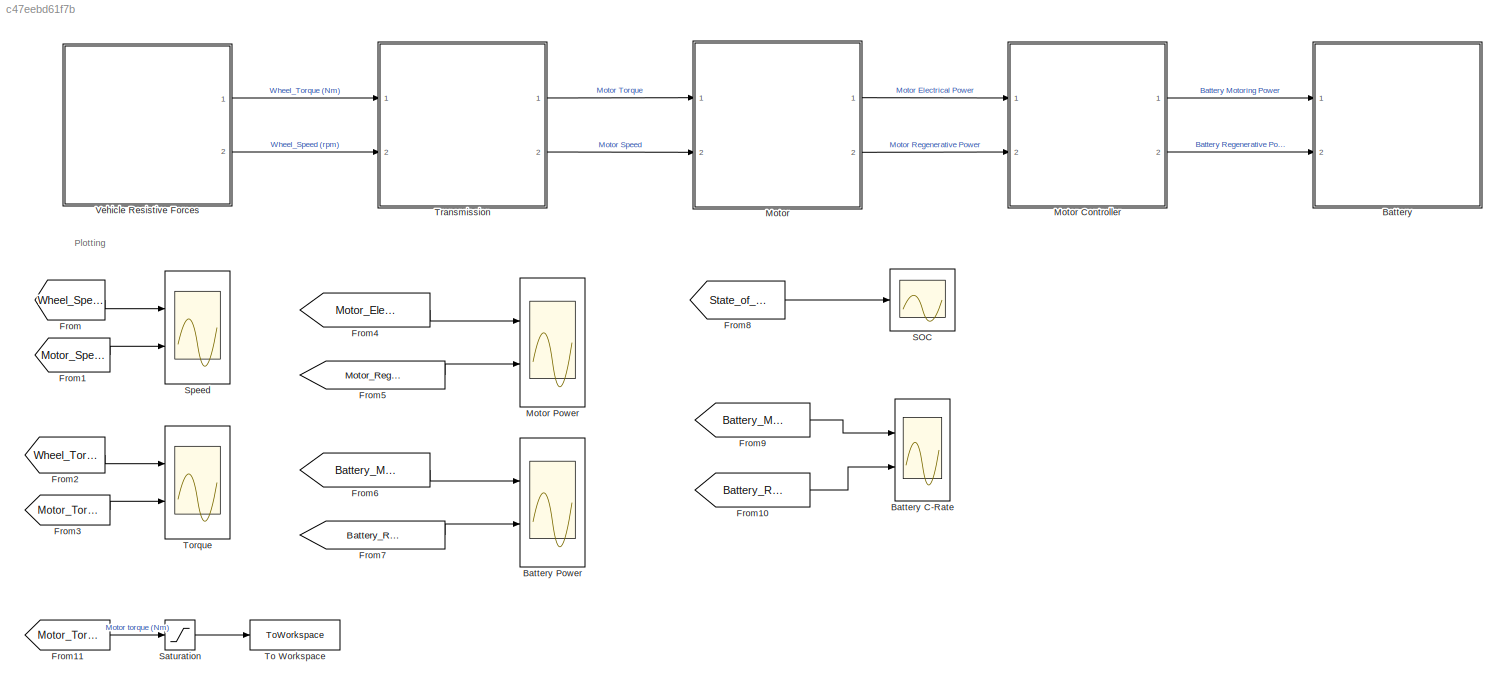
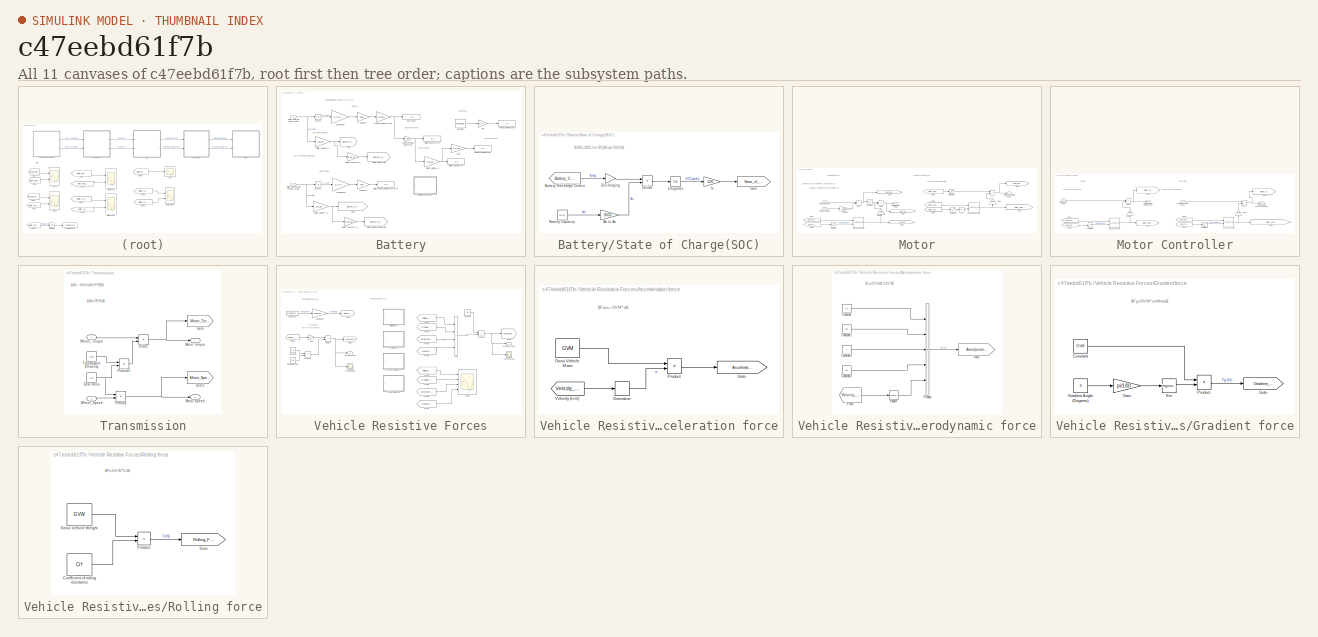
[diagram: thumbnail index - all 11 canvases of the model, root first then tree order]
MODEL slx_c47eebd61f7b
KIND model
CONFIG AbsTol = auto
CONFIG EnableMultiTasking = off
CONFIG FixedStep = 0.5
CONFIG MaxStep = auto
CONFIG MinStep = auto
CONFIG RelTol = 1e-3
CONFIG SampleTimeConstraint = Unconstrained
CONFIG SolverName = FixedStepAuto
CONFIG StartTime = 0.0
CONFIG StopTime = 993
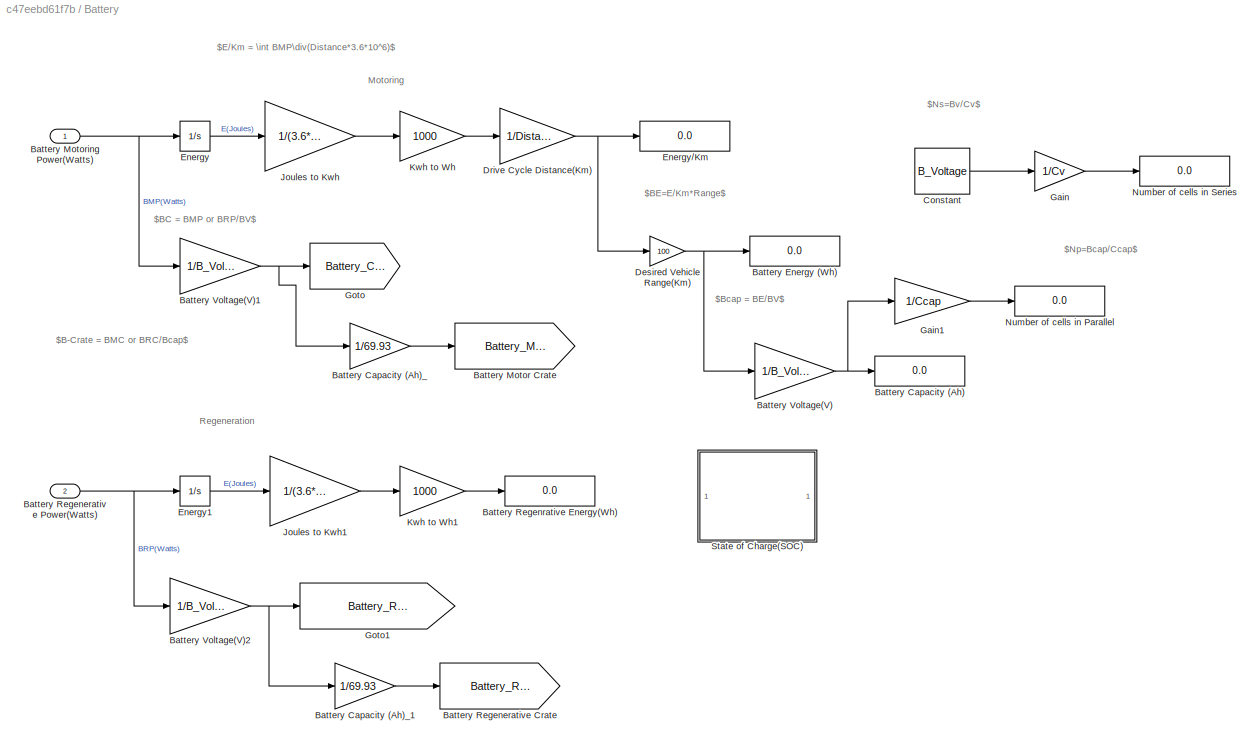
BLOCK [SubSystem] Battery
  Ports = [2]
  RequestExecContextInheritance = off
BLOCK [Scope] Battery C-Rate
  Floating = off
  NumInputPorts = 2
  Ports = [2]
  ScopeSpecificationString = Simulink.scopes.TimeScopeBlockCfg('CurrentConfiguration', extmgr.ConfigurationSet(extmgr.Configuration('Core','General UI',true),extmgr.Configuration('Core','Source UI',true),extmgr.Configuration('Sources','WiredSimulink',true,'DataLoggingVariableName','ScopeData1'),extmgr.Configuration('Visuals','Time Domain',true,'SerializedDisplays',{struct('MinYLimReal','-1.74396','MaxYLimReal','2.04292','YLab...<+1436ch>
BLOCK [Scope] Battery Power
  Floating = off
  NumInputPorts = 2
  Ports = [2]
  ScopeSpecificationString = Simulink.scopes.TimeScopeBlockCfg('CurrentConfiguration', extmgr.ConfigurationSet(extmgr.Configuration('Core','General UI',true),extmgr.Configuration('Core','Source UI',true),extmgr.Configuration('Sources','WiredSimulink',true,'DataLoggingVariableName','ScopeData1'),extmgr.Configuration('Visuals','Time Domain',true,'SerializedDisplays',{struct('MinYLimReal','-55127.67657','MaxYLimReal','51882.7715...<+1428ch>
BLOCK [Display] Battery/Battery Capacity (Ah)
  Decimation = 1
  Format = long
  Ports = [1]
BLOCK [Gain] Battery/Battery Capacity (Ah)_
  Gain = 1/69.93
BLOCK [Gain] Battery/Battery Capacity (Ah)_1
  Gain = 1/69.93
BLOCK [Display] Battery/Battery Energy (Wh)
  Decimation = 1
  Format = long
  Ports = [1]
BLOCK [Goto] Battery/Battery Motor Crate
  GotoTag = Battery_Motor_C_rate
  TagVisibility = global
BLOCK [Inport] Battery/Battery Motoring Power(Watts)
BLOCK [Goto] Battery/Battery Regenerative Crate
  GotoTag = Battery_Regen_C_rate
  TagVisibility = global
BLOCK [Inport] Battery/Battery Regenerative Power(Watts)
  Port = 2
BLOCK [Display] Battery/Battery Regenrative Energy(Wh)
  Decimation = 1
  Ports = [1]
BLOCK [Gain] Battery/Battery Voltage(V)
  Gain = 1/B_Voltage
BLOCK [Gain] Battery/Battery Voltage(V)1
  Gain = 1/B_Voltage
BLOCK [Gain] Battery/Battery Voltage(V)2
  Gain = 1/B_Voltage
BLOCK [Constant] Battery/Constant
  Value = B_Voltage
BLOCK [Gain] Battery/Desired Vehicle Range(Km)
  Gain = 100
BLOCK [Gain] Battery/Drive Cycle Distance(Km)
  Gain = 1/Distance
BLOCK [Integrator] Battery/Energy
  Ports = [1, 1]
BLOCK [Display] Battery/Energy//Km
  Decimation = 1
  Ports = [1]
BLOCK [Integrator] Battery/Energy1
  Ports = [1, 1]
BLOCK [Gain] Battery/Gain
  Gain = 1/Cv
BLOCK [Gain] Battery/Gain1
  Gain = 1/Ccap
BLOCK [Goto] Battery/Goto
  GotoTag = Battery_Current
  TagVisibility = global
BLOCK [Goto] Battery/Goto1
  GotoTag = Battery_Regenerative_Current
  TagVisibility = global
BLOCK [Gain] Battery/Joules to Kwh
  Gain = 1/(3.6*10^6)
BLOCK [Gain] Battery/Joules to Kwh1
  Gain = 1/(3.6*10^6)
BLOCK [Gain] Battery/Kwh to Wh
  Gain = 1000
BLOCK [Gain] Battery/Kwh to Wh1
  Gain = 1000
BLOCK [Display] Battery/Number of cells in Parallel
  Decimation = 1
  Ports = [1]
BLOCK [Display] Battery/Number of cells in Series
  Decimation = 1
  Ports = [1]
BLOCK [SubSystem] Battery/State of Charge(SOC)
  Ports = []
  RequestExecContextInheritance = off
BLOCK [Gain] Battery/State of Charge(SOC)/%
  Gain = 100
BLOCK [Gain] Battery/State of Charge(SOC)/Ah to As
  Gain = 3600
BLOCK [Constant] Battery/State of Charge(SOC)/Battery Capacity
  Value = 69.93
BLOCK [From] Battery/State of Charge(SOC)/Battery Discharge Current
  GotoTag = Battery_Current
  TagVisibility = global
BLOCK [Gain] Battery/State of Charge(SOC)/Discharging
  Gain = -1
BLOCK [Product] Battery/State of Charge(SOC)/Divide
  Inputs = */
  Ports = [2, 1]
BLOCK [Goto] Battery/State of Charge(SOC)/Goto
  GotoTag = State_of_Charge
  TagVisibility = global
BLOCK [Integrator] Battery/State of Charge(SOC)/Integrator
  InitialCondition = ISOC
  Ports = [1, 1]
BLOCK [From] From
  GotoTag = Wheel_Speed
  TagVisibility = global
BLOCK [From] From1
  GotoTag = Motor_Speed
  TagVisibility = global
BLOCK [From] From10
  GotoTag = Battery_Regen_C_rate
  TagVisibility = global
BLOCK [From] From11
  GotoTag = Motor_Torque
  TagVisibility = global
BLOCK [From] From2
  GotoTag = Wheel_Torque
  TagVisibility = global
BLOCK [From] From3
  GotoTag = Motor_Torque
  TagVisibility = global
BLOCK [From] From4
  GotoTag = Motor_Electrical_Power
  TagVisibility = global
BLOCK [From] From5
  GotoTag = Motor_Regenerative_Power
  TagVisibility = global
BLOCK [From] From6
  GotoTag = Battery_Motoring_power
  TagVisibility = global
BLOCK [From] From7
  GotoTag = Battery_Regenerative_power
  TagVisibility = global
BLOCK [From] From8
  GotoTag = State_of_Charge
  TagVisibility = global
BLOCK [From] From9
  GotoTag = Battery_Motor_C_rate
  TagVisibility = global
BLOCK [SubSystem] Motor
  Ports = [2, 2]
  RequestExecContextInheritance = off
BLOCK [SubSystem] Motor Controller
  Ports = [2, 2]
  RequestExecContextInheritance = off
BLOCK [Lookup_n-D] Motor Controller/2-D Lookup Table
  BreakpointsForDimension1 = Motor_controller_eff.Speed
  BreakpointsForDimension2 = Motor_controller_eff.Torque
  InputPortMap = u0,u1
  InternalRulePriority = Speed
  Ports = [2, 1]
  RndMeth = Simplest
  Table = Motor_controller_eff.eff
BLOCK [Lookup_n-D] Motor Controller/2-D Lookup Table1
  BreakpointsForDimension1 = Motor_controller_reff.Speed
  BreakpointsForDimension2 = Motor_controller_reff.Torque
  InputPortMap = u0,u1
  InternalRulePriority = Speed
  Ports = [2, 1]
  RndMeth = Simplest
  Table = Motor_controller_reff.eff
BLOCK [Product] Motor Controller/Divide
  Inputs = */
  Ports = [2, 1]
BLOCK [From] Motor Controller/From
  GotoTag = Motor_Speed
  TagVisibility = global
BLOCK [From] Motor Controller/From1
  GotoTag = Motor_Torque
  TagVisibility = global
BLOCK [From] Motor Controller/From2
  GotoTag = Motor_Speed
  TagVisibility = global
BLOCK [From] Motor Controller/From3
  GotoTag = Motor_Torque
  TagVisibility = global
BLOCK [Gain] Motor Controller/Gain
  Gain = 1/100
  NameLocation = right
BLOCK [Gain] Motor Controller/Gain1
  Gain = 1/100
  NameLocation = right
BLOCK [Goto] Motor Controller/Goto
  GotoTag = Motor_Controller_Efficiency
  TagVisibility = global
BLOCK [Goto] Motor Controller/Goto1
  GotoTag = Motor_Controller_Regenerative_Efficiency
  TagVisibility = global
BLOCK [Goto] Motor Controller/Goto2
  GotoTag = Battery_Motoring_power
  TagVisibility = global
BLOCK [Goto] Motor Controller/Goto3
  GotoTag = Battery_Regenerative_power
  TagVisibility = global
BLOCK [Outport] Motor Controller/Motor Controller Motoring Power
BLOCK [Outport] Motor Controller/Motor Controller Regenerative Power
  Port = 2
BLOCK [Inport] Motor Controller/Motor Electrical Power
BLOCK [Inport] Motor Controller/Motor Regenerative Power
  Port = 2
BLOCK [Product] Motor Controller/Product
  Ports = [2, 1]
BLOCK [Saturate] Motor Controller/Saturation
  LowerLimit = 0
  UpperLimit = inf
BLOCK [Saturate] Motor Controller/Saturation1
  LowerLimit = -inf
  UpperLimit = 0
BLOCK [Scope] Motor Power
  Floating = off
  NumInputPorts = 2
  Ports = [2]
  ScopeSpecificationString = Simulink.scopes.TimeScopeBlockCfg('CurrentConfiguration', extmgr.ConfigurationSet(extmgr.Configuration('Core','General UI',true),extmgr.Configuration('Core','Source UI',true),extmgr.Configuration('Sources','WiredSimulink',true,'DataLoggingVariableName','ScopeData1'),extmgr.Configuration('Visuals','Time Domain',true,'SerializedDisplays',{struct('MinYLimReal','-55127.67657','MaxYLimReal','51882.7715...<+1428ch>
BLOCK [Product] Motor/1
  Ports = [2, 1]
BLOCK [Lookup_n-D] Motor/2-D Lookup Table
  BreakpointsForDimension1 = Motor_eff.Speed
  BreakpointsForDimension2 = Motor_eff.Torque
  InputPortMap = u0,u1
  InternalRulePriority = Speed
  Ports = [2, 1]
  RndMeth = Simplest
  Table = Motor_eff.eff
BLOCK [Lookup_n-D] Motor/2-D Lookup Table1
  BreakpointsForDimension1 = Motor_reff.Speed
  BreakpointsForDimension2 = Motor_reff.Torque
  InputPortMap = u0,u1
  InternalRulePriority = Speed
  Ports = [2, 1]
  RndMeth = Simplest
  Table = Motor_reff.eff
BLOCK [Abs] Motor/Abs
  SaturateOnIntegerOverflow = off
BLOCK [Product] Motor/Divide
  Inputs = */
  Ports = [2, 1]
BLOCK [From] Motor/From
  GotoTag = Motor_Speed
  TagVisibility = global
BLOCK [From] Motor/From1
  GotoTag = Motor_Torque
  TagVisibility = global
BLOCK [From] Motor/From2
  GotoTag = Motor_Mechanical_Power
  TagVisibility = global
BLOCK [From] Motor/From3
  GotoTag = Motor_Speed
  TagVisibility = global
BLOCK [From] Motor/From4
  GotoTag = Motor_Torque
  TagVisibility = global
BLOCK [Gain] Motor/Gain
  Gain = 1/100
  NameLocation = right
BLOCK [Gain] Motor/Gain1
  Gain = 1/100
  NameLocation = right
BLOCK [Goto] Motor/Goto
  GotoTag = Motor_Mechanical_Power
  TagVisibility = global
BLOCK [Goto] Motor/Goto1
  GotoTag = Motor_Efficiency
  TagVisibility = global
BLOCK [Goto] Motor/Goto2
  GotoTag = Motor_Regenerative_Power
  TagVisibility = global
BLOCK [Goto] Motor/Goto3
  GotoTag = Motor_Regenerative_Efficiency
  TagVisibility = global
BLOCK [Goto] Motor/Goto4
  GotoTag = Motor_Electrical_Power
  TagVisibility = global
BLOCK [Product] Motor/MMP
  Ports = [2, 1]
BLOCK [Outport] Motor/Motor Electrical Power
BLOCK [Outport] Motor/Motor Regenerative Power
  Port = 2
BLOCK [Inport] Motor/Motor Speed(rpm)
  Port = 2
BLOCK [Inport] Motor/Motor Torque (Nm)
BLOCK [Saturate] Motor/Saturation
  LowerLimit = 0
  UpperLimit = inf
BLOCK [Saturate] Motor/Saturation1
  LowerLimit = 0
  UpperLimit = inf
BLOCK [Saturate] Motor/Saturation2
  LowerLimit = -inf
  UpperLimit = 0
BLOCK [Saturate] Motor/Saturation3
  LowerLimit = -inf
  UpperLimit = 0
BLOCK [Gain] Motor/rpm to rad//s
  Gain = 2*pi/60
BLOCK [Scope] SOC
  Floating = off
  NumInputPorts = 1
  Ports = [1]
  ScopeSpecificationString = Simulink.scopes.TimeScopeBlockCfg('CurrentConfiguration', extmgr.ConfigurationSet(extmgr.Configuration('Core','General UI',true),extmgr.Configuration('Core','Source UI',true),extmgr.Configuration('Sources','WiredSimulink',true,'DataLoggingVariableName','ScopeData1'),extmgr.Configuration('Visuals','Time Domain',true,'SerializedDisplays',{struct('MinYLimReal','94.51665','MaxYLimReal','100.60926','YL...<+1399ch>
BLOCK [Saturate] Saturation
  LowerLimit = 0
  UpperLimit = inf
BLOCK [Scope] Speed
  Floating = off
  NumInputPorts = 2
  Ports = [2]
  ScopeSpecificationString = Simulink.scopes.TimeScopeBlockCfg('CurrentConfiguration', extmgr.ConfigurationSet(extmgr.Configuration('Core','General UI',true),extmgr.Configuration('Core','Source UI',true),extmgr.Configuration('Sources','WiredSimulink',true,'DataLoggingVariableName','ScopeData1'),extmgr.Configuration('Visuals','Time Domain',true,'InputProcessing','FrameProcessing','SerializedDisplays',{struct('MinYLimReal','-74...<+1458ch>
BLOCK [ToWorkspace] To Workspace
  FixptAsFi = on
  MaxDataPoints = inf
  Ports = [1]
  SampleTime = -1
  SaveFormat = Timeseries
  VariableName = Motor_Torque
BLOCK [Scope] Torque
  Floating = off
  NumInputPorts = 2
  Ports = [2]
  ScopeSpecificationString = Simulink.scopes.TimeScopeBlockCfg('CurrentConfiguration', extmgr.ConfigurationSet(extmgr.Configuration('Core','General UI',true),extmgr.Configuration('Core','Source UI',true),extmgr.Configuration('Sources','WiredSimulink',true,'DataLoggingVariableName','ScopeData2'),extmgr.Configuration('Visuals','Time Domain',true,'SerializedDisplays',{struct('MinYLimReal','-1291.05897','MaxYLimReal','1306.70822'...<+1427ch>
BLOCK [SubSystem] Transmission
  Ports = [2, 2]
  RequestExecContextInheritance = off
BLOCK [Product] Transmission/Divide
  Inputs = */
  Ports = [2, 1]
BLOCK [Constant] Transmission/Gear Ratio
  Value = GR
BLOCK [Goto] Transmission/Goto
  GotoTag = Motor_Torque
  TagVisibility = global
BLOCK [Goto] Transmission/Goto1
  GotoTag = Motor_Speed
  TagVisibility = global
BLOCK [Outport] Transmission/Motor Speed
  Port = 2
BLOCK [Outport] Transmission/Motor Torque
BLOCK [Product] Transmission/Product
  Ports = [2, 1]
BLOCK [Product] Transmission/Product1
  Ports = [2, 1]
BLOCK [Constant] Transmission/Transmission Efficiency
  Value = Neff
BLOCK [Inport] Transmission/Wheel_Speed
  Port = 2
BLOCK [Inport] Transmission/Wheel_Torque
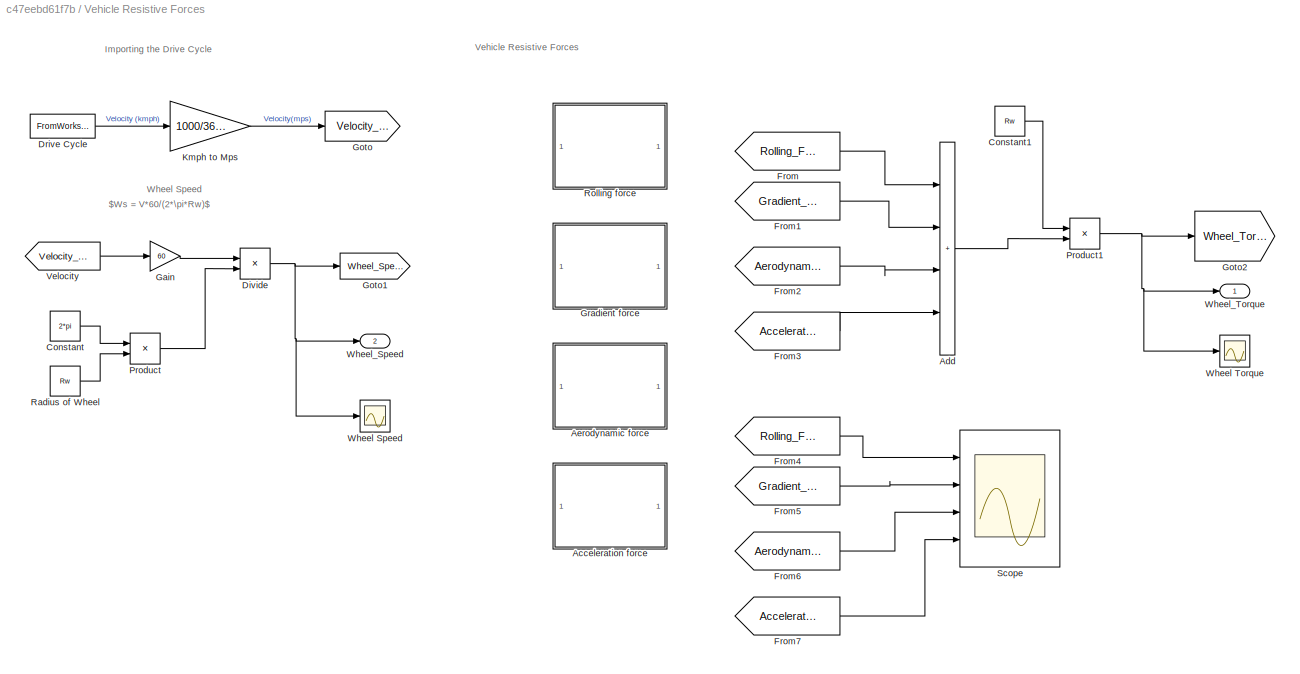
BLOCK [SubSystem] Vehicle Resistive Forces
  Ports = [0, 2]
  RequestExecContextInheritance = off
BLOCK [SubSystem] Vehicle Resistive Forces/Acceleration force
  Ports = []
  RequestExecContextInheritance = off
BLOCK [Derivative] Vehicle Resistive Forces/Acceleration force/Derivative
BLOCK [Goto] Vehicle Resistive Forces/Acceleration force/Goto
  GotoTag = Acceleration_force
  TagVisibility = global
BLOCK [Constant] Vehicle Resistive Forces/Acceleration force/Gross Vehicle Mass
  Value = GVM
BLOCK [Product] Vehicle Resistive Forces/Acceleration force/Product
  Ports = [2, 1]
BLOCK [From] Vehicle Resistive Forces/Acceleration force/Velocity (m//s)
  GotoTag = Velocity_mps
  TagVisibility = global
BLOCK [Sum] Vehicle Resistive Forces/Add
  IconShape = rectangular
  Inputs = ++++
  Ports = [4, 1]
BLOCK [SubSystem] Vehicle Resistive Forces/Aerodynamic force
  Ports = []
  RequestExecContextInheritance = off
BLOCK [Constant] Vehicle Resistive Forces/Aerodynamic force/Constant
  Value = 0.5
BLOCK [Constant] Vehicle Resistive Forces/Aerodynamic force/Constant1
  Value = rho
BLOCK [Constant] Vehicle Resistive Forces/Aerodynamic force/Constant2
  Value = A
BLOCK [Constant] Vehicle Resistive Forces/Aerodynamic force/Constant3
  Value = Cd
BLOCK [From] Vehicle Resistive Forces/Aerodynamic force/From
  GotoTag = Velocity_mps
  TagVisibility = global
BLOCK [Goto] Vehicle Resistive Forces/Aerodynamic force/Goto
  GotoTag = Aerodynamic_force
  TagVisibility = global
BLOCK [Product] Vehicle Resistive Forces/Aerodynamic force/Product
  Inputs = 5
  Ports = [5, 1]
BLOCK [Math] Vehicle Resistive Forces/Aerodynamic force/Square
  Operator = square
  Ports = [1, 1]
BLOCK [Constant] Vehicle Resistive Forces/Constant
  Value = 2*pi
BLOCK [Constant] Vehicle Resistive Forces/Constant1
  Value = Rw
BLOCK [Product] Vehicle Resistive Forces/Divide
  Inputs = */
  Ports = [2, 1]
BLOCK [FromWorkspace] Vehicle Resistive Forces/Drive Cycle
  VariableName = Artimus_Urban
BLOCK [From] Vehicle Resistive Forces/From
  GotoTag = Rolling_Force
  TagVisibility = global
BLOCK [From] Vehicle Resistive Forces/From1
  GotoTag = Gradient_Force
  TagVisibility = global
BLOCK [From] Vehicle Resistive Forces/From2
  GotoTag = Aerodynamic_force
  TagVisibility = global
BLOCK [From] Vehicle Resistive Forces/From3
  GotoTag = Acceleration_force
  TagVisibility = global
BLOCK [From] Vehicle Resistive Forces/From4
  GotoTag = Rolling_Force
  TagVisibility = global
BLOCK [From] Vehicle Resistive Forces/From5
  GotoTag = Gradient_Force
  TagVisibility = global
BLOCK [From] Vehicle Resistive Forces/From6
  GotoTag = Aerodynamic_force
  TagVisibility = global
BLOCK [From] Vehicle Resistive Forces/From7
  GotoTag = Acceleration_force
  TagVisibility = global
BLOCK [Gain] Vehicle Resistive Forces/Gain
  Gain = 60
BLOCK [Goto] Vehicle Resistive Forces/Goto
  GotoTag = Velocity_mps
  TagVisibility = global
BLOCK [Goto] Vehicle Resistive Forces/Goto1
  GotoTag = Wheel_Speed
  TagVisibility = global
BLOCK [Goto] Vehicle Resistive Forces/Goto2
  GotoTag = Wheel_Torque
  TagVisibility = global
BLOCK [SubSystem] Vehicle Resistive Forces/Gradient force
  Ports = []
  RequestExecContextInheritance = off
BLOCK [Constant] Vehicle Resistive Forces/Gradient force/Constant
  Value = GVW
BLOCK [Gain] Vehicle Resistive Forces/Gradient force/Gain
  Gain = pi/180
BLOCK [Goto] Vehicle Resistive Forces/Gradient force/Goto
  GotoTag = Gradient_Force
  TagVisibility = global
BLOCK [Constant] Vehicle Resistive Forces/Gradient force/Gradient Angle (Degrees)
  Value = 0
BLOCK [Product] Vehicle Resistive Forces/Gradient force/Product
  Ports = [2, 1]
BLOCK [Trigonometry] Vehicle Resistive Forces/Gradient force/Sin
  Ports = [1, 1]
BLOCK [Gain] Vehicle Resistive Forces/Kmph to Mps
  Gain = 1000/3600
BLOCK [Product] Vehicle Resistive Forces/Product
  Ports = [2, 1]
BLOCK [Product] Vehicle Resistive Forces/Product1
  Ports = [2, 1]
BLOCK [Constant] Vehicle Resistive Forces/Radius of Wheel
  Value = Rw
BLOCK [SubSystem] Vehicle Resistive Forces/Rolling force
  Ports = []
  RequestExecContextInheritance = off
BLOCK [Constant] Vehicle Resistive Forces/Rolling force/Coefficient of rolling resistance
  Value = Crf
BLOCK [Goto] Vehicle Resistive Forces/Rolling force/Goto
  GotoTag = Rolling_Force
  TagVisibility = global
BLOCK [Constant] Vehicle Resistive Forces/Rolling force/Gross Vehicle Weight
  Value = GVW
BLOCK [Product] Vehicle Resistive Forces/Rolling force/Product
  Ports = [2, 1]
BLOCK [Scope] Vehicle Resistive Forces/Scope
  Floating = off
  NumInputPorts = 4
  Ports = [4]
  ScopeSpecificationString = Simulink.scopes.TimeScopeBlockCfg('CurrentConfiguration', extmgr.ConfigurationSet(extmgr.Configuration('Core','General UI',true),extmgr.Configuration('Core','Source UI',true),extmgr.Configuration('Sources','WiredSimulink',true,'DataLoggingVariableName','ScopeData2'),extmgr.Configuration('Visuals','Time Domain',true,'PlotType','Line','SerializedDisplays',{struct('MinYLimReal','-6652.58611','MaxYLim...<+2006ch>
BLOCK [From] Vehicle Resistive Forces/Velocity
  GotoTag = Velocity_mps
  TagVisibility = global
BLOCK [Scope] Vehicle Resistive Forces/Wheel Speed
  Floating = off
  NumInputPorts = 1
  Ports = [1]
  ScopeSpecificationString = Simulink.scopes.TimeScopeBlockCfg('CurrentConfiguration', extmgr.ConfigurationSet(extmgr.Configuration('Core','General UI',true),extmgr.Configuration('Core','Source UI',true),extmgr.Configuration('Sources','WiredSimulink',true,'DataLoggingVariableName','ScopeData1'),extmgr.Configuration('Visuals','Time Domain',true,'SerializedDisplays',{struct('MinYLimReal','-94.15232','MaxYLimReal','847.37084','Y...<+1404ch>
BLOCK [Scope] Vehicle Resistive Forces/Wheel Torque
  Floating = off
  NumInputPorts = 1
  Ports = [1]
  ScopeSpecificationString = Simulink.scopes.TimeScopeBlockCfg('CurrentConfiguration', extmgr.ConfigurationSet(extmgr.Configuration('Core','General UI',true),extmgr.Configuration('Core','Source UI',true),extmgr.Configuration('Sources','WiredSimulink',true),extmgr.Configuration('Visuals','Time Domain',true,'SerializedDisplays',{struct('MinYLimReal','-1291.05897','MaxYLimReal','1306.70822','YLabelReal','','MinYLimMag','  0.0000...<+1379ch>
BLOCK [Outport] Vehicle Resistive Forces/Wheel_Speed
  Port = 2
BLOCK [Outport] Vehicle Resistive Forces/Wheel_Torque
ANNOTATION (root): Plotting
ANNOTATION Battery: Motoring
ANNOTATION Battery: Regeneration
ANNOTATION Battery: $Np=Bcap/Ccap$
ANNOTATION Battery: $Ns=Bv/Cv$
ANNOTATION Battery: $B-Crate = BMC or BRC/Bcap$
ANNOTATION Battery: $BC = BMP or BRP/BV$
ANNOTATION Battery: $BE=E/Km*Range$
ANNOTATION Battery: $Bcap = BE/BV$
ANNOTATION Battery: $E/Km = \int BMP\div(Distance*3.6*10^6)$
ANNOTATION Battery/State of Charge(SOC): $SOC=ISOC-\int BC/(Bcap*3600)$
ANNOTATION Motor: Motor Motoring Power
ANNOTATION Motor: Motor Regenerative Power
ANNOTATION Motor: $MRP = MMP<0*Meff = f(S,T<0)$
ANNOTATION Motor: $Motor Elec. Power (MEP) =MMP>0\div Meff =f(S,T>0)$
ANNOTATION Motor: $Motor Mechanical Power (MMP) = 2*\pi*Ms*Mt\div60$
ANNOTATION Motor Controller: Motoring
ANNOTATION Motor Controller: Regenerative
ANNOTATION Motor Controller: $MCMP=MEP/Mceff=f(S,T>0)$
ANNOTATION Motor Controller: $MCRP=MRP*Mceff=f(S,T<0)$
ANNOTATION Transmission: $Ms=GR*Ws$
ANNOTATION Transmission: $Mt = Wt\div(Neff*GR)$
ANNOTATION Vehicle Resistive Forces: Vehicle Resistive Forces
ANNOTATION Vehicle Resistive Forces: Wheel Speed
ANNOTATION Vehicle Resistive Forces: Importing the Drive Cycle
ANNOTATION Vehicle Resistive Forces: $Ws = V*60/(2*\pi*Rw)$
ANNOTATION Vehicle Resistive Forces/Acceleration force: $Facc=GVM*a$
ANNOTATION Vehicle Resistive Forces/Aerodynamic force: $Fa=0.5*\rho*A*Cd*V^^2$
ANNOTATION Vehicle Resistive Forces/Gradient force: $Fg=GVW*sin\theta$
ANNOTATION Vehicle Resistive Forces/Rolling force: $Fr=GVW*Crf$
LINE Battery/Battery Capacity (Ah)_1:1 -> Battery/Battery Regenerative Crate:1
LINE Battery/Battery Capacity (Ah)_:1 -> Battery/Battery Motor Crate:1
NET Battery/Battery Motoring Power(Watts):1 -> Battery/Battery Voltage(V)1:1, Battery/Energy:1
NET Battery/Battery Regenerative Power(Watts):1 -> Battery/Battery Voltage(V)2:1, Battery/Energy1:1
NET Battery/Battery Voltage(V)1:1 -> Battery/Battery Capacity (Ah)_:1, Battery/Goto:1
NET Battery/Battery Voltage(V)2:1 -> Battery/Battery Capacity (Ah)_1:1, Battery/Goto1:1
NET Battery/Battery Voltage(V):1 -> Battery/Battery Capacity (Ah):1, Battery/Gain1:1
LINE Battery/Constant:1 -> Battery/Gain:1
NET Battery/Desired Vehicle Range(Km):1 -> Battery/Battery Energy (Wh):1, Battery/Battery Voltage(V):1
NET Battery/Drive Cycle Distance(Km):1 -> Battery/Desired Vehicle Range(Km):1, Battery/Energy//Km:1
LINE Battery/Energy1:1 -> Battery/Joules to Kwh1:1
LINE Battery/Energy:1 -> Battery/Joules to Kwh:1
LINE Battery/Gain1:1 -> Battery/Number of cells in Parallel:1
LINE Battery/Gain:1 -> Battery/Number of cells in Series:1
LINE Battery/Joules to Kwh1:1 -> Battery/Kwh to Wh1:1
LINE Battery/Joules to Kwh:1 -> Battery/Kwh to Wh:1
LINE Battery/Kwh to Wh1:1 -> Battery/Battery Regenrative Energy(Wh):1
LINE Battery/Kwh to Wh:1 -> Battery/Drive Cycle Distance(Km):1
LINE Battery/State of Charge(SOC)/%:1 -> Battery/State of Charge(SOC)/Goto:1
LINE Battery/State of Charge(SOC)/Ah to As:1 -> Battery/State of Charge(SOC)/Divide:2
LINE Battery/State of Charge(SOC)/Battery Capacity:1 -> Battery/State of Charge(SOC)/Ah to As:1
LINE Battery/State of Charge(SOC)/Battery Discharge Current:1 -> Battery/State of Charge(SOC)/Discharging:1
LINE Battery/State of Charge(SOC)/Discharging:1 -> Battery/State of Charge(SOC)/Divide:1
LINE Battery/State of Charge(SOC)/Divide:1 -> Battery/State of Charge(SOC)/Integrator:1
LINE Battery/State of Charge(SOC)/Integrator:1 -> Battery/State of Charge(SOC)/%:1
LINE From10:1 -> Battery C-Rate:2
LINE From11:1 -> Saturation:1
LINE From1:1 -> Speed:2
LINE From2:1 -> Torque:1
LINE From3:1 -> Torque:2
LINE From4:1 -> Motor Power:1
LINE From5:1 -> Motor Power:2
LINE From6:1 -> Battery Power:1
LINE From7:1 -> Battery Power:2
LINE From8:1 -> SOC:1
LINE From9:1 -> Battery C-Rate:1
LINE From:1 -> Speed:1
NET Motor Controller/2-D Lookup Table1:1 -> Motor Controller/Gain1:1, Motor Controller/Goto1:1
NET Motor Controller/2-D Lookup Table:1 -> Motor Controller/Gain:1, Motor Controller/Goto:1
NET Motor Controller/Divide:1 -> Motor Controller/Goto2:1, Motor Controller/Motor Controller Motoring Power:1
LINE Motor Controller/From1:1 -> Motor Controller/Saturation:1
LINE Motor Controller/From2:1 -> Motor Controller/2-D Lookup Table1:1
LINE Motor Controller/From3:1 -> Motor Controller/Saturation1:1
LINE Motor Controller/From:1 -> Motor Controller/2-D Lookup Table:1
LINE Motor Controller/Gain1:1 -> Motor Controller/Product:2
LINE Motor Controller/Gain:1 -> Motor Controller/Divide:2
LINE Motor Controller/Motor Electrical Power:1 -> Motor Controller/Divide:1
LINE Motor Controller/Motor Regenerative Power:1 -> Motor Controller/Product:1
NET Motor Controller/Product:1 -> Motor Controller/Goto3:1, Motor Controller/Motor Controller Regenerative Power:1
LINE Motor Controller/Saturation1:1 -> Motor Controller/2-D Lookup Table1:2
LINE Motor Controller/Saturation:1 -> Motor Controller/2-D Lookup Table:2
LINE Motor Controller:1 -> Battery:1
LINE Motor Controller:2 -> Battery:2
NET Motor/1:1 -> Motor/Goto2:1, Motor/Motor Regenerative Power:1
NET Motor/2-D Lookup Table1:1 -> Motor/Gain1:1, Motor/Goto3:1
NET Motor/2-D Lookup Table:1 -> Motor/Gain:1, Motor/Goto1:1
LINE Motor/Abs:1 -> Motor/2-D Lookup Table1:2
NET Motor/Divide:1 -> Motor/Goto4:1, Motor/Motor Electrical Power:1
LINE Motor/From1:1 -> Motor/Saturation:1
LINE Motor/From2:1 -> Motor/Saturation2:1
LINE Motor/From3:1 -> Motor/2-D Lookup Table1:1
LINE Motor/From4:1 -> Motor/Saturation3:1
LINE Motor/From:1 -> Motor/2-D Lookup Table:1
LINE Motor/Gain1:1 -> Motor/1:2
LINE Motor/Gain:1 -> Motor/Divide:2
NET Motor/MMP:1 -> Motor/Goto:1, Motor/Saturation1:1
LINE Motor/Motor Speed(rpm):1 -> Motor/rpm to rad//s:1
LINE Motor/Motor Torque (Nm):1 -> Motor/MMP:1
LINE Motor/Saturation1:1 -> Motor/Divide:1
LINE Motor/Saturation2:1 -> Motor/1:1
LINE Motor/Saturation3:1 -> Motor/Abs:1
LINE Motor/Saturation:1 -> Motor/2-D Lookup Table:2
LINE Motor/rpm to rad//s:1 -> Motor/MMP:2
LINE Motor:1 -> Motor Controller:1
LINE Motor:2 -> Motor Controller:2
LINE Saturation:1 -> To Workspace:1
NET Transmission/Divide:1 -> Transmission/Goto:1, Transmission/Motor Torque:1
NET Transmission/Gear Ratio:1 -> Transmission/Product1:2, Transmission/Product:1
LINE Transmission/Product1:1 -> Transmission/Divide:2
NET Transmission/Product:1 -> Transmission/Goto1:1, Transmission/Motor Speed:1
LINE Transmission/Transmission Efficiency:1 -> Transmission/Product1:1
LINE Transmission/Wheel_Speed:1 -> Transmission/Product:2
LINE Transmission/Wheel_Torque:1 -> Transmission/Divide:1
LINE Transmission:1 -> Motor:1
LINE Transmission:2 -> Motor:2
LINE Vehicle Resistive Forces/Acceleration force/Derivative:1 -> Vehicle Resistive Forces/Acceleration force/Product:2
LINE Vehicle Resistive Forces/Acceleration force/Gross Vehicle Mass:1 -> Vehicle Resistive Forces/Acceleration force/Product:1
LINE Vehicle Resistive Forces/Acceleration force/Product:1 -> Vehicle Resistive Forces/Acceleration force/Goto:1
LINE Vehicle Resistive Forces/Acceleration force/Velocity (m//s):1 -> Vehicle Resistive Forces/Acceleration force/Derivative:1
LINE Vehicle Resistive Forces/Add:1 -> Vehicle Resistive Forces/Product1:2
LINE Vehicle Resistive Forces/Aerodynamic force/Constant1:1 -> Vehicle Resistive Forces/Aerodynamic force/Product:2
LINE Vehicle Resistive Forces/Aerodynamic force/Constant2:1 -> Vehicle Resistive Forces/Aerodynamic force/Product:3
LINE Vehicle Resistive Forces/Aerodynamic force/Constant3:1 -> Vehicle Resistive Forces/Aerodynamic force/Product:4
LINE Vehicle Resistive Forces/Aerodynamic force/Constant:1 -> Vehicle Resistive Forces/Aerodynamic force/Product:1
LINE Vehicle Resistive Forces/Aerodynamic force/From:1 -> Vehicle Resistive Forces/Aerodynamic force/Square:1
LINE Vehicle Resistive Forces/Aerodynamic force/Product:1 -> Vehicle Resistive Forces/Aerodynamic force/Goto:1
LINE Vehicle Resistive Forces/Aerodynamic force/Square:1 -> Vehicle Resistive Forces/Aerodynamic force/Product:5
LINE Vehicle Resistive Forces/Constant1:1 -> Vehicle Resistive Forces/Product1:1
LINE Vehicle Resistive Forces/Constant:1 -> Vehicle Resistive Forces/Product:1
NET Vehicle Resistive Forces/Divide:1 -> Vehicle Resistive Forces/Goto1:1, Vehicle Resistive Forces/Wheel Speed:1, Vehicle Resistive Forces/Wheel_Speed:1
LINE Vehicle Resistive Forces/Drive Cycle:1 -> Vehicle Resistive Forces/Kmph to Mps:1
LINE Vehicle Resistive Forces/From1:1 -> Vehicle Resistive Forces/Add:2
LINE Vehicle Resistive Forces/From2:1 -> Vehicle Resistive Forces/Add:3
LINE Vehicle Resistive Forces/From3:1 -> Vehicle Resistive Forces/Add:4
LINE Vehicle Resistive Forces/From4:1 -> Vehicle Resistive Forces/Scope:1
LINE Vehicle Resistive Forces/From5:1 -> Vehicle Resistive Forces/Scope:2
LINE Vehicle Resistive Forces/From6:1 -> Vehicle Resistive Forces/Scope:3
LINE Vehicle Resistive Forces/From7:1 -> Vehicle Resistive Forces/Scope:4
LINE Vehicle Resistive Forces/From:1 -> Vehicle Resistive Forces/Add:1
LINE Vehicle Resistive Forces/Gain:1 -> Vehicle Resistive Forces/Divide:1
LINE Vehicle Resistive Forces/Gradient force/Constant:1 -> Vehicle Resistive Forces/Gradient force/Product:1
LINE Vehicle Resistive Forces/Gradient force/Gain:1 -> Vehicle Resistive Forces/Gradient force/Sin:1
LINE Vehicle Resistive Forces/Gradient force/Gradient Angle (Degrees):1 -> Vehicle Resistive Forces/Gradient force/Gain:1
LINE Vehicle Resistive Forces/Gradient force/Product:1 -> Vehicle Resistive Forces/Gradient force/Goto:1
LINE Vehicle Resistive Forces/Gradient force/Sin:1 -> Vehicle Resistive Forces/Gradient force/Product:2
LINE Vehicle Resistive Forces/Kmph to Mps:1 -> Vehicle Resistive Forces/Goto:1
NET Vehicle Resistive Forces/Product1:1 -> Vehicle Resistive Forces/Goto2:1, Vehicle Resistive Forces/Wheel Torque:1, Vehicle Resistive Forces/Wheel_Torque:1
LINE Vehicle Resistive Forces/Product:1 -> Vehicle Resistive Forces/Divide:2
LINE Vehicle Resistive Forces/Radius of Wheel:1 -> Vehicle Resistive Forces/Product:2
LINE Vehicle Resistive Forces/Rolling force/Coefficient of rolling resistance:1 -> Vehicle Resistive Forces/Rolling force/Product:2
LINE Vehicle Resistive Forces/Rolling force/Gross Vehicle Weight:1 -> Vehicle Resistive Forces/Rolling force/Product:1
LINE Vehicle Resistive Forces/Rolling force/Product:1 -> Vehicle Resistive Forces/Rolling force/Goto:1
LINE Vehicle Resistive Forces/Velocity:1 -> Vehicle Resistive Forces/Gain:1
LINE Vehicle Resistive Forces:1 -> Transmission:1
LINE Vehicle Resistive Forces:2 -> Transmission:2
note: NET lines group one-source signal fan-out (src -> all destinations, sorted); 1:1 wires keep LINE
